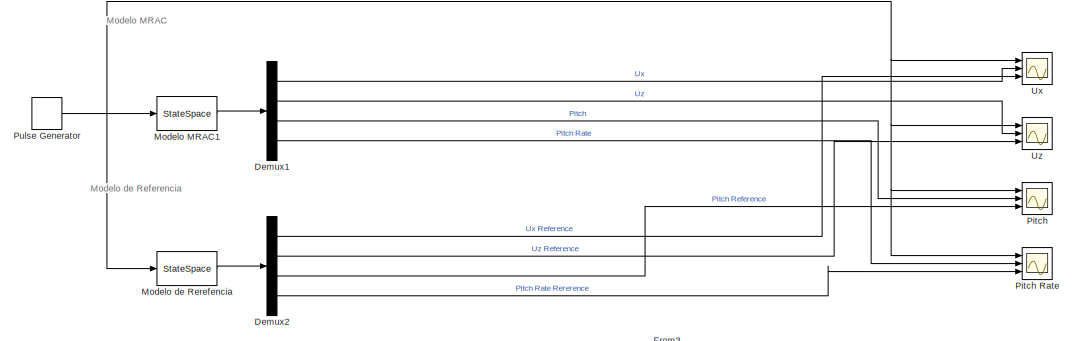
[diagram: root canvas - part 1/3, top left region]
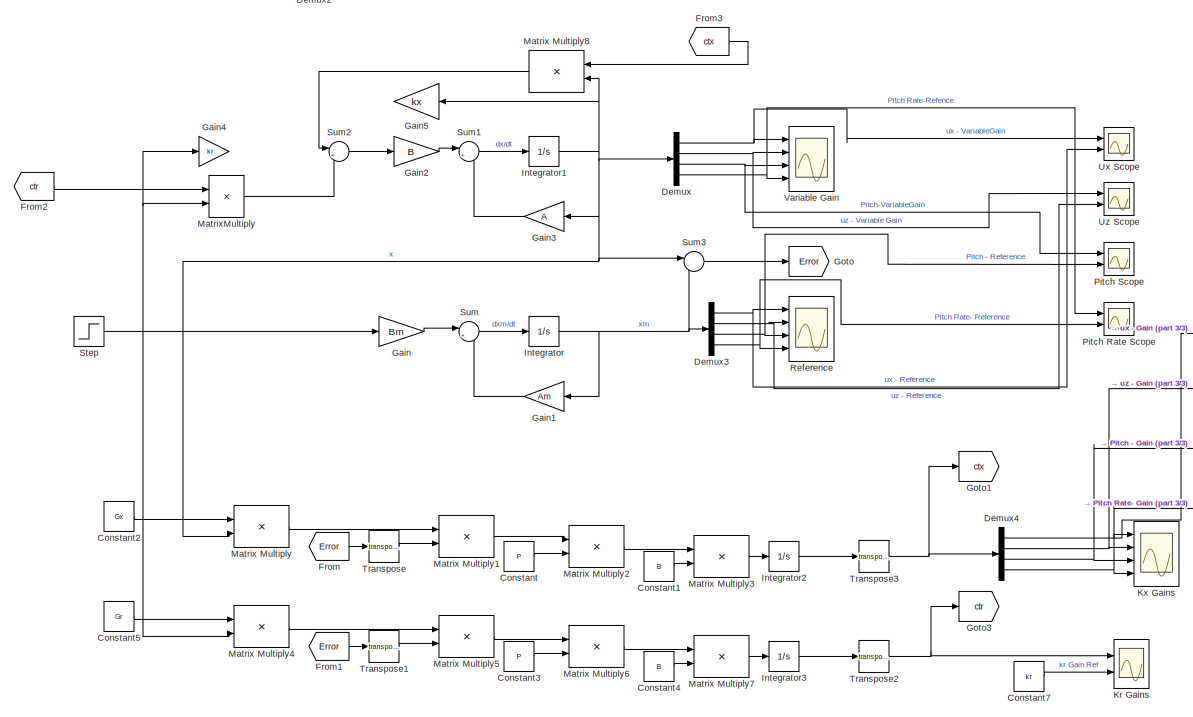
[diagram: root canvas - part 2/3, middle left region]
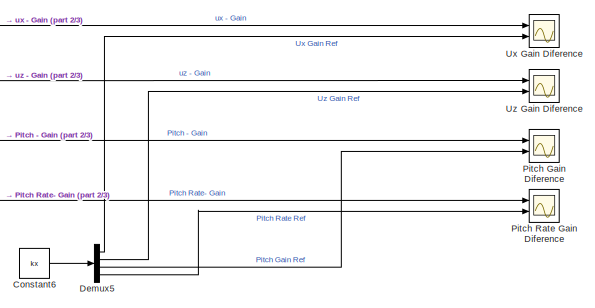
[diagram: root canvas - part 3/3, bottom right region]
MODEL slx_5da96bae0fc4
KIND model
CONFIG AbsTol = auto
CONFIG EnableMultiTasking = off
CONFIG FixedStep = auto
CONFIG MaxStep = auto
CONFIG MinStep = auto
CONFIG RelTol = 1e-3
CONFIG SampleTimeConstraint = Unconstrained
CONFIG SolverName = VariableStepAuto
CONFIG StartTime = 0.0
CONFIG StopTime = 1000
BLOCK [Constant] Constant
  Value = P
BLOCK [Constant] Constant1
  Value = B
BLOCK [Constant] Constant2
  Value = Gx
BLOCK [Constant] Constant3
  Value = P
BLOCK [Constant] Constant4
  Value = B
BLOCK [Constant] Constant5
  Value = Gr
BLOCK [Constant] Constant6
  Value = kx
BLOCK [Constant] Constant7
  Value = kr
BLOCK [Demux] Demux
  Ports = [1, 4]
BLOCK [Demux] Demux1
  Ports = [1, 4]
BLOCK [Demux] Demux2
  Ports = [1, 4]
BLOCK [Demux] Demux3
  Ports = [1, 4]
BLOCK [Demux] Demux4
  Ports = [1, 4]
BLOCK [Demux] Demux5
  Ports = [1, 4]
BLOCK [From] From
  GotoTag = Error
BLOCK [From] From1
  GotoTag = Error
BLOCK [From] From2
  GotoTag = ctr
BLOCK [From] From3
  GotoTag = ctx
BLOCK [Gain] Gain
  Gain = Bm
  Multiplication = Matrix(K*u)
BLOCK [Gain] Gain1
  Gain = Am
  Multiplication = Matrix(K*u)
BLOCK [Gain] Gain2
  Gain = B
  Multiplication = Matrix(K*u)
BLOCK [Gain] Gain3
  Gain = A
  Multiplication = Matrix(K*u)
BLOCK [Gain] Gain4
  Gain = kr
BLOCK [Gain] Gain5
  Gain = kx
  Multiplication = Matrix(K*u)
BLOCK [Goto] Goto
  GotoTag = Error
BLOCK [Goto] Goto1
  GotoTag = ctx
BLOCK [Goto] Goto3
  GotoTag = ctr
BLOCK [Integrator] Integrator
  Ports = [1, 1]
  ZeroCross = off
BLOCK [Integrator] Integrator1
  Ports = [1, 1]
  ZeroCross = off
BLOCK [Integrator] Integrator2
  Ports = [1, 1]
  ZeroCross = off
BLOCK [Integrator] Integrator3
  Ports = [1, 1]
  ZeroCross = off
BLOCK [Scope] Kr Gains 
  Floating = off
  NumInputPorts = 2
  Ports = [2]
  ScopeSpecificationString = Simulink.scopes.TimeScopeBlockCfg('CurrentConfiguration', extmgr.ConfigurationSet(extmgr.Configuration('Core','General UI',true),extmgr.Configuration('Core','Source UI',true),extmgr.Configuration('Sources','WiredSimulink',true,'DataLoggingVariableName','ScopeData4'),extmgr.Configuration('Visuals','Time Domain',true,'SerializedDisplays',{struct('MinYLimReal','-40.3313','MaxYLimReal','362.98172','YL...<+1777ch>
BLOCK [Scope] Kx Gains 
  Floating = off
  NumInputPorts = 4
  Ports = [4]
  ScopeSpecificationString = Simulink.scopes.TimeScopeBlockCfg('CurrentConfiguration', extmgr.ConfigurationSet(extmgr.Configuration('Core','General UI',true),extmgr.Configuration('Core','Source UI',true),extmgr.Configuration('Sources','WiredSimulink',true,'DataLoggingVariableName','ScopeData6'),extmgr.Configuration('Visuals','Time Domain',true,'SerializedDisplays',{struct('MinYLimReal','-185.02677','MaxYLimReal','121.51617','...<+1455ch>
BLOCK [Product] Matrix Multiply
  Multiplication = Matrix(*)
  Ports = [2, 1]
BLOCK [Product] Matrix Multiply1
  Multiplication = Matrix(*)
  Ports = [2, 1]
BLOCK [Product] Matrix Multiply2
  Multiplication = Matrix(*)
  Ports = [2, 1]
BLOCK [Product] Matrix Multiply3
  Multiplication = Matrix(*)
  Ports = [2, 1]
BLOCK [Product] Matrix Multiply4
  Multiplication = Matrix(*)
  Ports = [2, 1]
BLOCK [Product] Matrix Multiply5
  Multiplication = Matrix(*)
  Ports = [2, 1]
BLOCK [Product] Matrix Multiply6
  Multiplication = Matrix(*)
  Ports = [2, 1]
BLOCK [Product] Matrix Multiply7
  Multiplication = Matrix(*)
  Ports = [2, 1]
BLOCK [Product] Matrix Multiply8
  Multiplication = Matrix(*)
  NameLocation = top
  Ports = [2, 1]
BLOCK [Product] MatrixMultiply
  Multiplication = Matrix(*)
  Ports = [2, 1]
BLOCK [StateSpace] Modelo MRAC1
  A = Af
  B = Bf
  C = Cf
  D = Df
  InitialCondition = 0
  Ports = [1, 1]
BLOCK [StateSpace] Modelo de Rerefencia
  A = Am
  B = Bm
  C = Cm
  D = Dm
  InitialCondition = 0
  Ports = [1, 1]
BLOCK [Scope] Pitch 
  Floating = off
  NumInputPorts = 3
  Ports = [3]
  ScopeSpecificationString = Simulink.scopes.TimeScopeBlockCfg('CurrentConfiguration', extmgr.ConfigurationSet(extmgr.Configuration('Core','General UI',true),extmgr.Configuration('Core','Source UI',true),extmgr.Configuration('Sources','WiredSimulink',true,'DataLoggingVariableName','ScopeData1'),extmgr.Configuration('Visuals','Time Domain',true,'SerializedDisplays',{struct('MinYLimReal','-0.13824','MaxYLimReal','1.14601','YLab...<+1763ch>
BLOCK [Scope] Pitch Gain Diference
  Floating = off
  NumInputPorts = 2
  Ports = [2]
  ScopeSpecificationString = Simulink.scopes.TimeScopeBlockCfg('CurrentConfiguration', extmgr.ConfigurationSet(extmgr.Configuration('Core','General UI',true),extmgr.Configuration('Core','Source UI',true),extmgr.Configuration('Sources','WiredSimulink',true,'DataLoggingVariableName','ScopeData8'),extmgr.Configuration('Visuals','Time Domain',true,'SerializedDisplays',{struct('MinYLimReal','-356.55858','MaxYLimReal','44.35848','Y...<+1785ch>
BLOCK [Scope] Pitch Rate
  Floating = off
  NumInputPorts = 3
  Ports = [3]
  ScopeSpecificationString = Simulink.scopes.TimeScopeBlockCfg('CurrentConfiguration', extmgr.ConfigurationSet(extmgr.Configuration('Core','General UI',true),extmgr.Configuration('Core','Source UI',true),extmgr.Configuration('Sources','WiredSimulink',true,'DataLoggingVariableName','ScopeData4'),extmgr.Configuration('Visuals','Time Domain',true,'SerializedDisplays',{struct('MinYLimReal','-3.88778','MaxYLimReal','3.8878','YLabe...<+1769ch>
BLOCK [Scope] Pitch Rate Gain Diference
  Floating = off
  NumInputPorts = 2
  Ports = [2]
  ScopeSpecificationString = Simulink.scopes.TimeScopeBlockCfg('CurrentConfiguration', extmgr.ConfigurationSet(extmgr.Configuration('Core','General UI',true),extmgr.Configuration('Core','Source UI',true),extmgr.Configuration('Sources','WiredSimulink',true,'DataLoggingVariableName','ScopeData7'),extmgr.Configuration('Visuals','Time Domain',true,'SerializedDisplays',{struct('MinYLimReal','-175.41719','MaxYLimReal','35.03003','Y...<+1791ch>
BLOCK [Scope] Pitch Rate Scope
  Floating = off
  NumInputPorts = 2
  Ports = [2]
  ScopeSpecificationString = Simulink.scopes.TimeScopeBlockCfg('CurrentConfiguration', extmgr.ConfigurationSet(extmgr.Configuration('Core','General UI',true),extmgr.Configuration('Core','Source UI',true),extmgr.Configuration('Sources','WiredSimulink',true,'DataLoggingVariableName','ScopeData5'),extmgr.Configuration('Visuals','Time Domain',true,'SerializedDisplays',{struct('MinYLimReal','-36.15588','MaxYLimReal','156.10698','Y...<+1411ch>
BLOCK [Scope] Pitch Scope
  Floating = off
  NumInputPorts = 2
  Ports = [2]
  ScopeSpecificationString = Simulink.scopes.TimeScopeBlockCfg('CurrentConfiguration', extmgr.ConfigurationSet(extmgr.Configuration('Core','General UI',true),extmgr.Configuration('Core','Source UI',true),extmgr.Configuration('Sources','WiredSimulink',true,'DataLoggingVariableName','ScopeData4'),extmgr.Configuration('Visuals','Time Domain',true,'SerializedDisplays',{struct('MinYLimReal','-0.13339','MaxYLimReal','1.20051','YLab...<+1395ch>
BLOCK [DiscretePulseGenerator] Pulse Generator
  Period = 10
  PhaseDelay = 5
  Ports = [0, 1]
  PulseType = Time based
  PulseWidth = 50
BLOCK [Scope] Reference
  Floating = off
  NumInputPorts = 4
  Ports = [4]
  ScopeSpecificationString = Simulink.scopes.TimeScopeBlockCfg('CurrentConfiguration', extmgr.ConfigurationSet(extmgr.Configuration('Core','General UI',true),extmgr.Configuration('Core','Source UI',true),extmgr.Configuration('Sources','WiredSimulink',true,'DataLoggingVariableName','ScopeData1'),extmgr.Configuration('Visuals','Time Domain',true,'SerializedDisplays',{struct('MinYLimReal','-229.88468','MaxYLimReal','69.16466','Y...<+1426ch>
BLOCK [Step] Step
  SampleTime = 0
  Time = 0
  ZeroCross = off
BLOCK [Sum] Sum
  Inputs = |++
  Ports = [2, 1]
BLOCK [Sum] Sum1
  Inputs = |++
  Ports = [2, 1]
BLOCK [Sum] Sum2
  Inputs = |++
  NameLocation = top
  Ports = [2, 1]
BLOCK [Sum] Sum3
  Inputs = |-+
  Ports = [2, 1]
BLOCK [Math] Transpose
  Operator = transpose
  Ports = [1, 1]
BLOCK [Math] Transpose1
  Operator = transpose
  Ports = [1, 1]
BLOCK [Math] Transpose2
  Operator = transpose
  Ports = [1, 1]
BLOCK [Math] Transpose3
  Operator = transpose
  Ports = [1, 1]
BLOCK [Scope] Ux
  Floating = off
  NumInputPorts = 3
  Ports = [3]
  ScopeSpecificationString = Simulink.scopes.TimeScopeBlockCfg('CurrentConfiguration', extmgr.ConfigurationSet(extmgr.Configuration('Core','General UI',true),extmgr.Configuration('Core','Source UI',true),extmgr.Configuration('Sources','WiredSimulink',true,'DataLoggingVariableName','ScopeData2'),extmgr.Configuration('Visuals','Time Domain',true,'SerializedDisplays',{struct('MinYLimReal','-122.6061','MaxYLimReal','14.73401','YL...<+1765ch>
BLOCK [Scope] Ux Gain Diference
  Floating = off
  NumInputPorts = 2
  Ports = [2]
  ScopeSpecificationString = Simulink.scopes.TimeScopeBlockCfg('CurrentConfiguration', extmgr.ConfigurationSet(extmgr.Configuration('Core','General UI',true),extmgr.Configuration('Core','Source UI',true),extmgr.Configuration('Sources','WiredSimulink',true,'DataLoggingVariableName','ScopeData9'),extmgr.Configuration('Visuals','Time Domain',true,'SerializedDisplays',{struct('MinYLimReal','-22.48631','MaxYLimReal','20.89145','YL...<+1839ch>
BLOCK [Scope] Ux Scope
  Floating = off
  NumInputPorts = 2
  Ports = [2]
  ScopeSpecificationString = Simulink.scopes.TimeScopeBlockCfg('CurrentConfiguration', extmgr.ConfigurationSet(extmgr.Configuration('Core','General UI',true),extmgr.Configuration('Core','Source UI',true),extmgr.Configuration('Sources','WiredSimulink',true,'DataLoggingVariableName','ScopeData2'),extmgr.Configuration('Visuals','Time Domain',true,'SerializedDisplays',{struct('MinYLimReal','-223.84428','MaxYLimReal','24.87159','Y...<+1500ch>
BLOCK [Scope] Uz
  Floating = off
  NumInputPorts = 3
  Ports = [3]
  ScopeSpecificationString = Simulink.scopes.TimeScopeBlockCfg('CurrentConfiguration', extmgr.ConfigurationSet(extmgr.Configuration('Core','General UI',true),extmgr.Configuration('Core','Source UI',true),extmgr.Configuration('Sources','WiredSimulink',true,'DataLoggingVariableName','ScopeData3'),extmgr.Configuration('Visuals','Time Domain',true,'SerializedDisplays',{struct('MinYLimReal','-45.13369','MaxYLimReal','69.83097','YL...<+1763ch>
BLOCK [Scope] Uz Gain Diference
  Floating = off
  NumInputPorts = 2
  Ports = [2]
  ScopeSpecificationString = Simulink.scopes.TimeScopeBlockCfg('CurrentConfiguration', extmgr.ConfigurationSet(extmgr.Configuration('Core','General UI',true),extmgr.Configuration('Core','Source UI',true),extmgr.Configuration('Sources','WiredSimulink',true,'DataLoggingVariableName','ScopeData10'),extmgr.Configuration('Visuals','Time Domain',true,'SerializedDisplays',{struct('MinYLimReal','-94.15451','MaxYLimReal','111.41926','...<+1782ch>
BLOCK [Scope] Uz Scope
  Floating = off
  NumInputPorts = 2
  Ports = [2]
  ScopeSpecificationString = Simulink.scopes.TimeScopeBlockCfg('CurrentConfiguration', extmgr.ConfigurationSet(extmgr.Configuration('Core','General UI',true),extmgr.Configuration('Core','Source UI',true),extmgr.Configuration('Sources','WiredSimulink',true,'DataLoggingVariableName','ScopeData3'),extmgr.Configuration('Visuals','Time Domain',true,'SerializedDisplays',{struct('MinYLimReal','-23.84678','MaxYLimReal','214.62101','Y...<+1766ch>
BLOCK [Scope] Variable Gain
  Floating = off
  NumInputPorts = 4
  Ports = [4]
  ScopeSpecificationString = Simulink.scopes.TimeScopeBlockCfg('CurrentConfiguration', extmgr.ConfigurationSet(extmgr.Configuration('Core','General UI',true),extmgr.Configuration('Core','Source UI',true),extmgr.Configuration('Sources','WiredSimulink',true,'DataLoggingVariableName','ScopeData2'),extmgr.Configuration('Visuals','Time Domain',true,'SerializedDisplays',{struct('MinYLimReal','-220.04536','MaxYLimReal','205.82812','...<+1499ch>
ANNOTATION (root): Modelo MRAC
ANNOTATION (root): Modelo de Referencia
LINE Constant1:1 -> Matrix Multiply3:2
LINE Constant2:1 -> Matrix Multiply:1
LINE Constant3:1 -> Matrix Multiply6:2
LINE Constant4:1 -> Matrix Multiply7:2
LINE Constant5:1 -> Matrix Multiply4:1
LINE Constant6:1 -> Demux5:1
LINE Constant7:1 -> Kr Gains :2
LINE Constant:1 -> Matrix Multiply2:2
LINE Demux1:1 -> Ux:2
LINE Demux1:2 -> Uz:2
LINE Demux1:3 -> Pitch :2
LINE Demux1:4 -> Pitch Rate:2
LINE Demux2:1 -> Ux:3
LINE Demux2:2 -> Uz:3
LINE Demux2:3 -> Pitch :3
LINE Demux2:4 -> Pitch Rate:3
NET Demux3:1 -> Reference:1, Ux Scope:2
NET Demux3:2 -> Reference:2, Uz Scope:2
NET Demux3:3 -> Pitch Scope:2, Reference:3
NET Demux3:4 -> Pitch Rate Scope:2, Reference:4
NET Demux4:1 -> Kx Gains :1, Ux Gain Diference:1
NET Demux4:2 -> Kx Gains :2, Uz Gain Diference:1
NET Demux4:3 -> Kx Gains :3, Pitch Gain Diference:1
NET Demux4:4 -> Kx Gains :4, Pitch Rate Gain Diference:1
LINE Demux5:1 -> Ux Gain Diference:2
LINE Demux5:2 -> Uz Gain Diference:2
LINE Demux5:3 -> Pitch Gain Diference:2
LINE Demux5:4 -> Pitch Rate Gain Diference:2
NET Demux:1 -> Ux Scope:1, Variable Gain:1
NET Demux:2 -> Uz Scope:1, Variable Gain:2
NET Demux:3 -> Pitch Scope:1, Variable Gain:3
NET Demux:4 -> Pitch Rate Scope:1, Variable Gain:4
LINE From1:1 -> Transpose1:1
LINE From2:1 -> MatrixMultiply:1
LINE From3:1 -> Matrix Multiply8:1
LINE From:1 -> Transpose:1
LINE Gain1:1 -> Sum:2
LINE Gain2:1 -> Sum1:1
LINE Gain3:1 -> Sum1:2
LINE Gain:1 -> Sum:1
NET Integrator1:1 -> Demux:1, Gain3:1, Gain5:1, Matrix Multiply8:2, Matrix Multiply:2, Sum3:1
LINE Integrator2:1 -> Transpose3:1
LINE Integrator3:1 -> Transpose2:1
NET Integrator:1 -> Demux3:1, Gain1:1, Sum3:2
LINE Matrix Multiply1:1 -> Matrix Multiply2:1
LINE Matrix Multiply2:1 -> Matrix Multiply3:1
LINE Matrix Multiply3:1 -> Integrator2:1
LINE Matrix Multiply4:1 -> Matrix Multiply5:1
LINE Matrix Multiply5:1 -> Matrix Multiply6:1
LINE Matrix Multiply6:1 -> Matrix Multiply7:1
LINE Matrix Multiply7:1 -> Integrator3:1
LINE Matrix Multiply8:1 -> Sum2:1
LINE Matrix Multiply:1 -> Matrix Multiply1:1
LINE MatrixMultiply:1 -> Sum2:2
LINE Modelo MRAC1:1 -> Demux1:1
LINE Modelo de Rerefencia:1 -> Demux2:1
NET Pulse Generator:1 -> Modelo MRAC1:1, Modelo de Rerefencia:1, Pitch :1, Pitch Rate:1, Ux:1, Uz:1
NET Step:1 -> Gain4:1, Gain:1, Matrix Multiply4:2, MatrixMultiply:2
LINE Sum1:1 -> Integrator1:1
LINE Sum2:1 -> Gain2:1
LINE Sum3:1 -> Goto:1
LINE Sum:1 -> Integrator:1
LINE Transpose1:1 -> Matrix Multiply5:2
NET Transpose2:1 -> Goto3:1, Kr Gains :1
NET Transpose3:1 -> Demux4:1, Goto1:1
LINE Transpose:1 -> Matrix Multiply1:2
note: NET lines group one-source signal fan-out (src -> all destinations, sorted); 1:1 wires keep LINE
